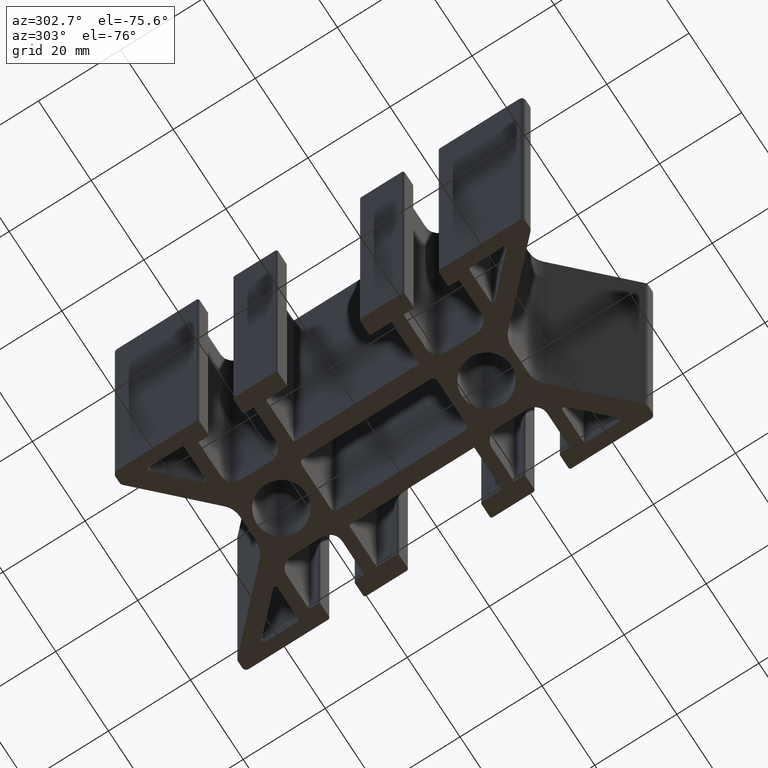
[diagram: clean part render]
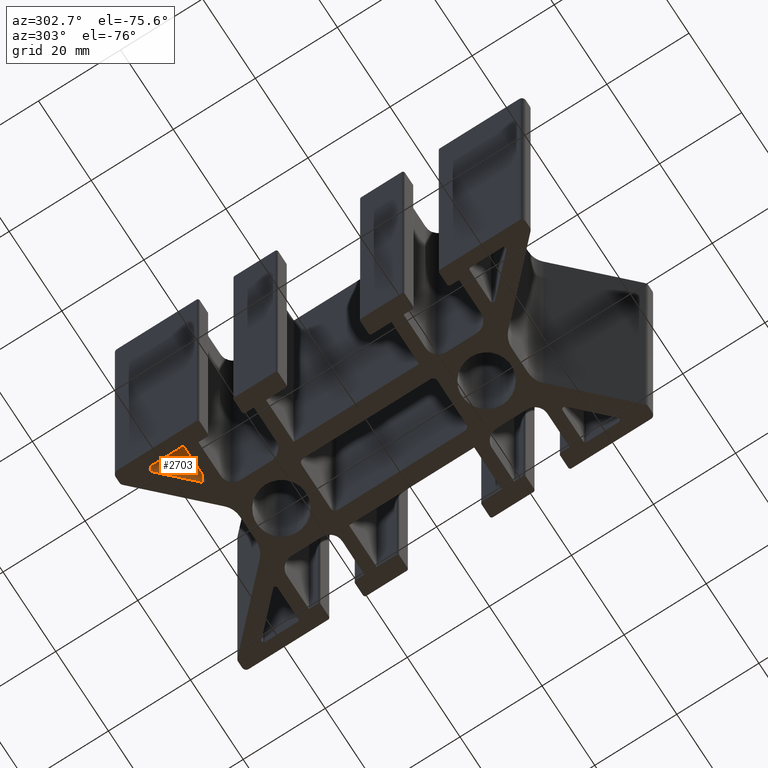
[diagram: same view with one face highlighted and labeled with its STEP entity id]
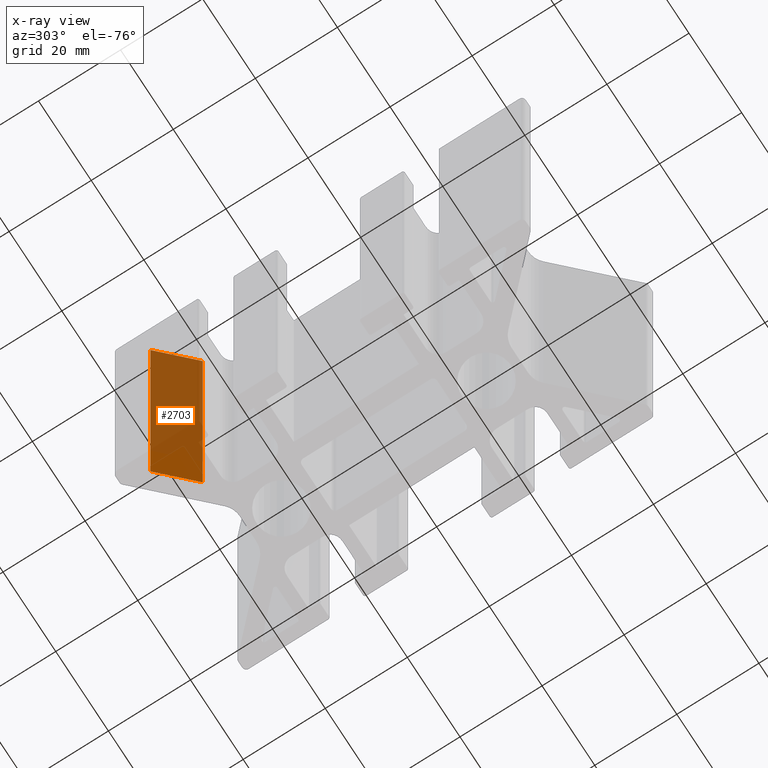
[diagram: x-ray of the same camera — body ghosted, the highlighted face saturated]
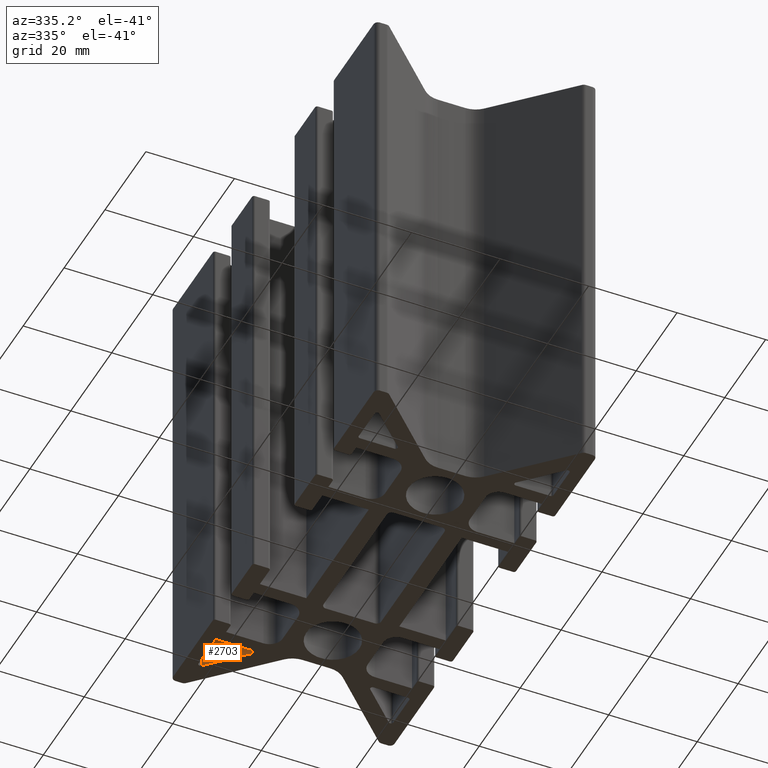
[diagram: same view with one face highlighted and labeled with its STEP entity id]
A machine part, auxiliary view. The second image highlights one B-rep face of the part: STEP entity #2703.
The next image is the same camera in x-ray: the body ghosted, the highlighted face saturated — about 81% of this face is hidden behind the body in this view.
A second angle (auxiliary view) of the same face is appended — the face is thin or edge-on in the first view.
In plain terms, the highlighted planar face has unit normal (0.7071, 0.7071, 0).
Its self-contained STEP definition (entity closure, byte-faithful):
#37=PLANE('',#2886);
#125=FACE_OUTER_BOUND('',#265,.T.);
#265=EDGE_LOOP('',(#1867,#1868,#1869,#1870));
#559=LINE('',#4042,#849);
#560=LINE('',#4046,#850);
#561=LINE('',#4048,#851);
#562=LINE('',#4049,#852);
#849=VECTOR('',#3222,10.);
#850=VECTOR('',#3227,10.);
#851=VECTOR('',#3228,10.);
#852=VECTOR('',#3229,10.);
#1141=VERTEX_POINT('',#4039);
#1142=VERTEX_POINT('',#4041);
#1143=VERTEX_POINT('',#4045);
#1144=VERTEX_POINT('',#4047);
#1434=EDGE_CURVE('',#1141,#1142,#559,.T.);
#1436=EDGE_CURVE('',#1143,#1141,#560,.T.);
#1437=EDGE_CURVE('',#1143,#1144,#561,.T.);
#1438=EDGE_CURVE('',#1142,#1144,#562,.T.);
#1867=ORIENTED_EDGE('',*,*,#1434,.F.);
#1868=ORIENTED_EDGE('',*,*,#1436,.F.);
#1869=ORIENTED_EDGE('',*,*,#1437,.T.);
#1870=ORIENTED_EDGE('',*,*,#1438,.F.);
#2703=ADVANCED_FACE('',(#125),#37,.F.);
#2886=AXIS2_PLACEMENT_3D('',#4044,#3225,#3226);
#3222=DIRECTION('',(0.,0.,1.));
#3225=DIRECTION('center_axis',(0.707106781186628,0.707106781186467,0.));
#3226=DIRECTION('ref_axis',(-0.707106781186467,0.707106781186628,0.));
#3227=DIRECTION('',(-0.707106781186467,0.707106781186628,0.));
#3228=DIRECTION('',(0.,0.,1.));
#3229=DIRECTION('',(0.707106781186467,-0.707106781186628,0.));
#4039=CARTESIAN_POINT('',(-21.1464466094074,43.4010518525208,-50.));
#4041=CARTESIAN_POINT('',(-21.1464466094074,43.4010518525208,50.));
#4042=CARTESIAN_POINT('',(-21.1464466094074,43.4010518525208,0.));
#4044=CARTESIAN_POINT('Origin',(-13.3489481474879,35.6035533905995,0.));
#4045=CARTESIAN_POINT('',(-13.3489481474879,35.6035533905995,-50.));
#4046=CARTESIAN_POINT('',(-1.1108034158788,23.3654086589876,-50.));
#4047=CARTESIAN_POINT('',(-13.3489481474879,35.6035533905995,50.));
#4048=CARTESIAN_POINT('',(-13.3489481474879,35.6035533905995,0.));
#4049=CARTESIAN_POINT('',(-1.1108034158788,23.3654086589876,50.));